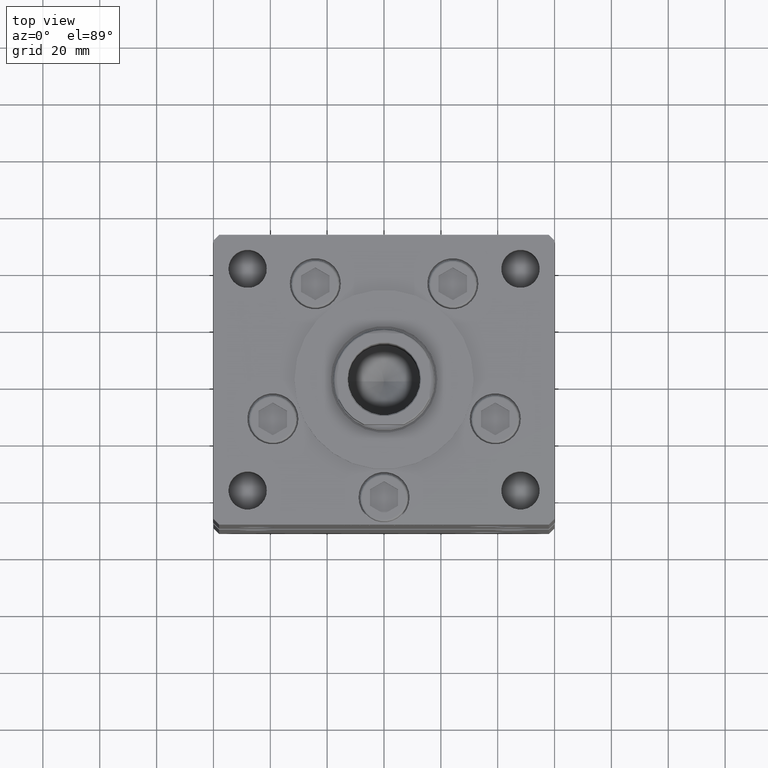
[diagram: clean part render]
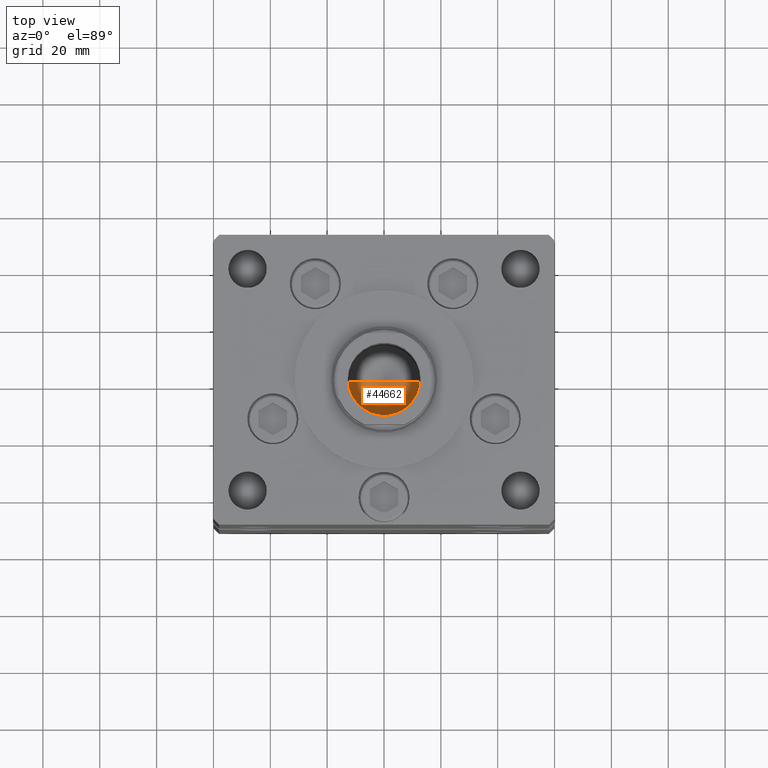
[diagram: same view with one face highlighted and labeled with its STEP entity id]
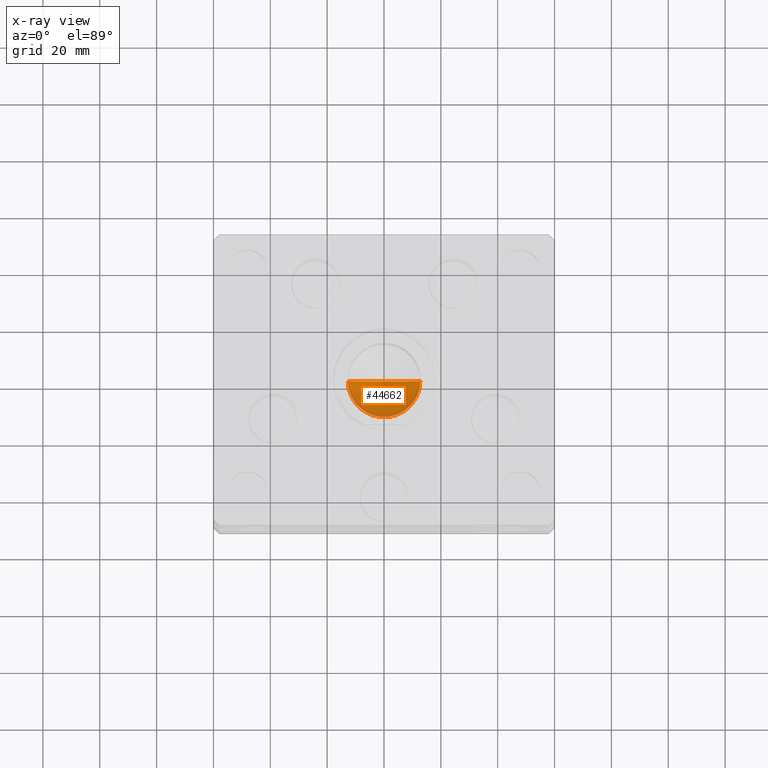
[diagram: x-ray of the same camera — body ghosted, the highlighted face saturated]
A machine part, top view. The second image highlights one B-rep face of the part: STEP entity #44662.
The next image is the same camera in x-ray: the body ghosted, the highlighted face saturated — about 8% of this face is hidden behind the body in this view.
In plain terms, the highlighted conical surface has half-angle 59 deg.
Its self-contained STEP definition (entity closure, byte-faithful):
#180 = EDGE_CURVE ( 'NONE', #3713, #2453, #3186, .T. ) ;
#970 = ORIENTED_EDGE ( 'NONE', *, *, #48827, .F. ) ;
#1495 = DIRECTION ( 'NONE',  ( 0.8571673007021117785, 0.000000000000000000, 0.5150380749100550437 ) ) ;
#1656 = CARTESIAN_POINT ( 'NONE',  ( 0.000000000000000000, 0.000000000000000000, 124.2500000000000142 ) ) ;
#2453 = VERTEX_POINT ( 'NONE', #2873 ) ;
#2873 = CARTESIAN_POINT ( 'NONE',  ( 12.74999999999999112, 0.000000000000000000, 124.2500000000000142 ) ) ;
#3186 = CIRCLE ( 'NONE', #45101, 12.74999999999999112 ) ;
#3713 = VERTEX_POINT ( 'NONE', #15860 ) ;
#4314 = ORIENTED_EDGE ( 'NONE', *, *, #180, .T. ) ;
#4918 = CONICAL_SURFACE ( 'NONE', #13496, 12.74999999999999112, 1.029744258676653423 ) ;
#5784 = LINE ( 'NONE', #18394, #29905 ) ;
#10639 = DIRECTION ( 'NONE',  ( -0.8571673007021117785, 1.049727191138617956E-16, 0.5150380749100550437 ) ) ;
#13042 = DIRECTION ( 'NONE',  ( -0.000000000000000000, -0.000000000000000000, 1.000000000000000000 ) ) ;
#13496 = AXIS2_PLACEMENT_3D ( 'NONE', #20555, #13042, #29645 ) ;
#15860 = CARTESIAN_POINT ( 'NONE',  ( -12.74999999999999112, 1.561424668912874125E-15, 124.2500000000000142 ) ) ;
#17524 = VECTOR ( 'NONE', #10639, 1000.000000000000000 ) ;
#17791 = VERTEX_POINT ( 'NONE', #36037 ) ;
#18286 = DIRECTION ( 'NONE',  ( 1.000000000000000000, 0.000000000000000000, 0.000000000000000000 ) ) ;
#18394 = CARTESIAN_POINT ( 'NONE',  ( 12.74999999999999112, 0.000000000000000000, 124.2500000000000142 ) ) ;
#20555 = CARTESIAN_POINT ( 'NONE',  ( 0.000000000000000000, 0.000000000000000000, 124.2500000000000142 ) ) ;
#22021 = DIRECTION ( 'NONE',  ( -0.000000000000000000, -0.000000000000000000, 1.000000000000000000 ) ) ;
#28834 = FACE_OUTER_BOUND ( 'NONE', #34539, .T. ) ;
#29645 = DIRECTION ( 'NONE',  ( 1.000000000000000000, 0.000000000000000000, 0.000000000000000000 ) ) ;
#29905 = VECTOR ( 'NONE', #1495, 1000.000000000000000 ) ;
#34374 = EDGE_CURVE ( 'NONE', #17791, #3713, #51395, .T. ) ;
#34539 = EDGE_LOOP ( 'NONE', ( #970, #47789, #4314 ) ) ;
#36037 = CARTESIAN_POINT ( 'NONE',  ( -1.307202896762960287E-14, 0.000000000000000000, 116.5890271073986213 ) ) ;
#44662 = ADVANCED_FACE ( 'NONE', ( #28834 ), #4918, .F. ) ;
#45101 = AXIS2_PLACEMENT_3D ( 'NONE', #1656, #22021, #18286 ) ;
#47367 = CARTESIAN_POINT ( 'NONE',  ( -12.74999999999999112, 1.561424668912874125E-15, 124.2500000000000142 ) ) ;
#47789 = ORIENTED_EDGE ( 'NONE', *, *, #34374, .T. ) ;
#48827 = EDGE_CURVE ( 'NONE', #17791, #2453, #5784, .T. ) ;
#51395 = LINE ( 'NONE', #47367, #17524 ) ;